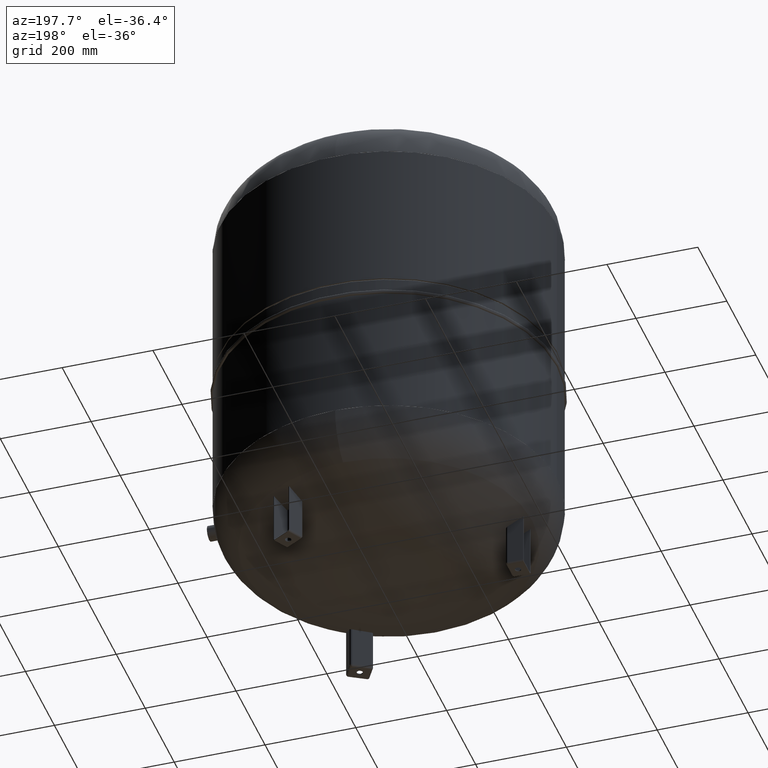
[diagram: clean part render]
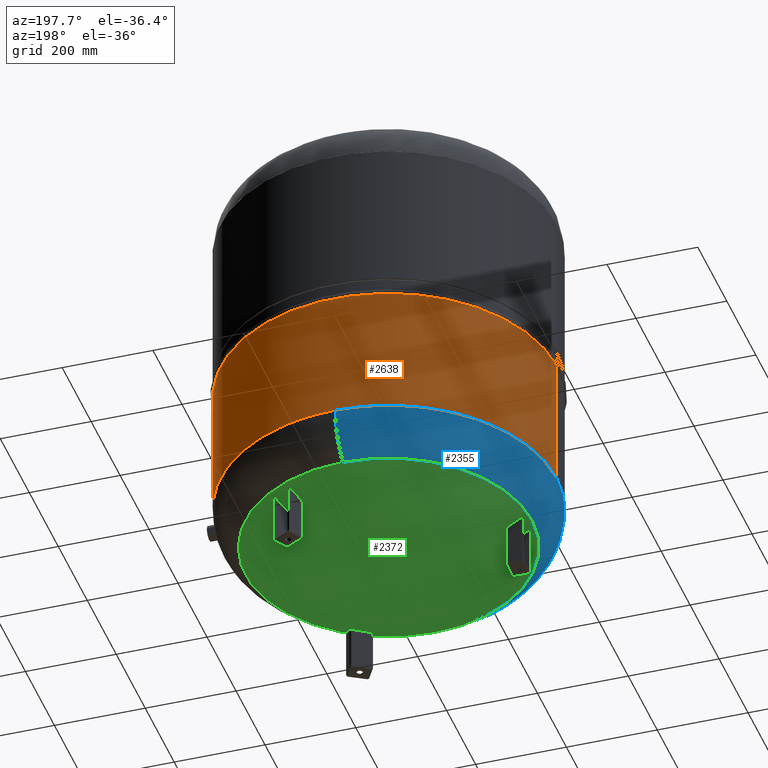
[diagram: same view with three faces highlighted in distinct colors, each labeled with its STEP entity id]
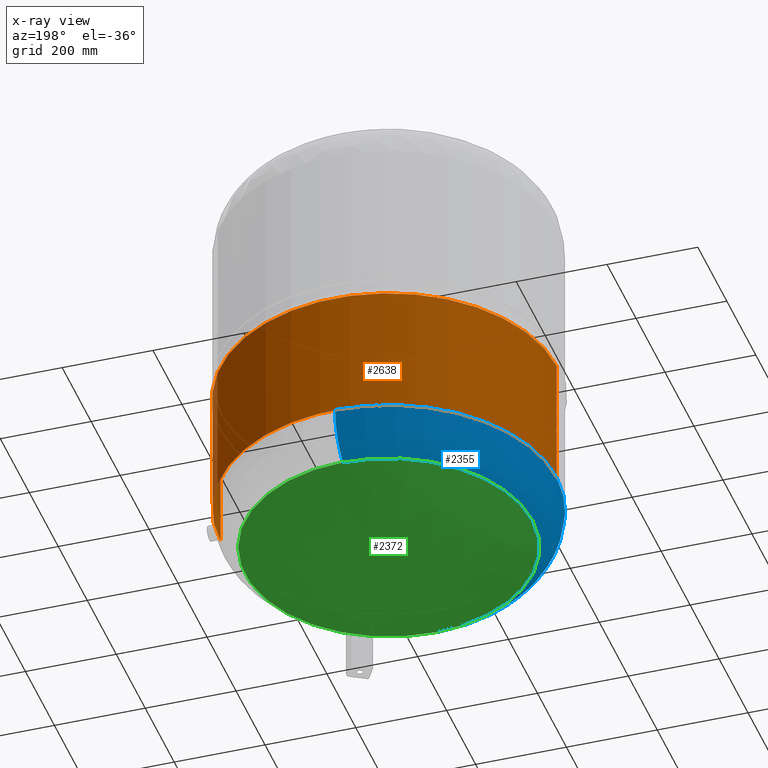
[diagram: x-ray of the same camera — body ghosted, the three highlighted faces saturated]
A machine part, auxiliary view with three faces highlighted in distinct colors.
The next image is the same camera in x-ray (body ghosted, the three faces saturated) — at least one of them is partly hidden behind the body in this view.
Their STEP definitions:

[orange] entity #2638 — the highlighted cylindrical surface (partial cylindrical patch) has radius 370 mm, axis along (0, 0, 1).
#2544=CARTESIAN_POINT('',(369.999999999999720,0.0,510.600000000000020));
#2545=VERTEX_POINT('',#2544);
#2554=CARTESIAN_POINT('',(-369.999999999999890,-4.531044E-014,510.600000000000020));
#2555=VERTEX_POINT('',#2554);
#2578=CARTESIAN_POINT('',(369.999999999999940,0.0,219.0));
#2579=VERTEX_POINT('',#2578);
#2580=CARTESIAN_POINT('',(369.999999999999720,0.0,510.600000000000020));
#2581=DIRECTION('',(0.0,0.0,-1.0));
#2582=VECTOR('',#2581,291.600000000000020);
#2583=LINE('',#2580,#2582);
#2584=EDGE_CURVE('',#2545,#2579,#2583,.T.);
#2587=CARTESIAN_POINT('',(-369.999999999999890,-4.531044E-014,219.000000000000030));
#2588=VERTEX_POINT('',#2587);
#2589=CARTESIAN_POINT('',(-369.999999999999890,-4.531044E-014,510.600000000000020));
#2590=DIRECTION('',(0.0,0.0,-1.0));
#2591=VECTOR('',#2590,291.600000000000020);
#2592=LINE('',#2589,#2591);
#2593=EDGE_CURVE('',#2555,#2588,#2592,.T.);
#2610=CARTESIAN_POINT('',(-1.668796E-014,0.0,219.0));
#2611=DIRECTION('',(0.0,0.0,1.0));
#2612=DIRECTION('',(1.0,0.0,0.0));
#2613=AXIS2_PLACEMENT_3D('',#2610,#2611,#2612);
#2614=CIRCLE('',#2613,369.999999999999940);
#2615=EDGE_CURVE('',#2579,#2588,#2614,.T.);
#2621=CARTESIAN_POINT('',(-9.337194E-015,0.0,364.799999999999950));
#2622=DIRECTION('',(5.041681E-017,0.0,1.0));
#2623=DIRECTION('',(1.0,0.0,0.0));
#2624=AXIS2_PLACEMENT_3D('',#2621,#2622,#2623);
#2625=CYLINDRICAL_SURFACE('',#2624,369.999999999999890);
#2626=ORIENTED_EDGE('',*,*,#2584,.T.);
#2627=ORIENTED_EDGE('',*,*,#2615,.T.);
#2628=ORIENTED_EDGE('',*,*,#2593,.F.);
#2629=CARTESIAN_POINT('',(-1.986422E-015,0.0,510.600000000000020));
#2630=DIRECTION('',(0.0,0.0,1.0));
#2631=DIRECTION('',(1.0,0.0,0.0));
#2632=AXIS2_PLACEMENT_3D('',#2629,#2630,#2631);
#2633=CIRCLE('',#2632,369.999999999999720);
#2634=EDGE_CURVE('',#2545,#2555,#2633,.T.);
#2635=ORIENTED_EDGE('',*,*,#2634,.F.);
#2636=EDGE_LOOP('',(#2626,#2627,#2628,#2635));
#2637=FACE_OUTER_BOUND('',#2636,.T.);
#2638=ADVANCED_FACE('',(#2637),#2625,.T.);

[blue] entity #2355 — the highlighted toroidal blend (fillet) surface has major radius 254.5 mm and minor (blend) radius 115.5 mm.
#2260=CARTESIAN_POINT('',(-370.0,-3.468087E-014,218.793879611869530));
#2261=VERTEX_POINT('',#2260);
#2285=CARTESIAN_POINT('',(-4.531044E-014,369.999999999999940,218.793879611869580));
#2286=VERTEX_POINT('',#2285);
#2294=CARTESIAN_POINT('',(0.0,-3.468087E-014,218.793879611869530));
#2295=DIRECTION('',(0.0,0.0,1.0));
#2296=DIRECTION('',(-1.0,0.0,0.0));
#2297=AXIS2_PLACEMENT_3D('',#2294,#2295,#2296);
#2298=CIRCLE('',#2297,370.0);
#2299=EDGE_CURVE('',#2286,#2261,#2298,.T.);
#2304=CARTESIAN_POINT('',(0.0,-3.468087E-014,218.793879611869560));
#2305=DIRECTION('',(0.0,-1.836970E-016,1.0));
#2306=DIRECTION('',(0.0,-1.0,0.0));
#2307=AXIS2_PLACEMENT_3D('',#2304,#2305,#2306);
#2308=TOROIDAL_SURFACE('',#2307,254.500000000000030,115.500000000000000);
#2309=CARTESIAN_POINT('',(0.0,-370.000000000000060,218.793879611869470));
#2310=VERTEX_POINT('',#2309);
#2311=CARTESIAN_POINT('',(0.0,-315.931034482758610,120.985505725079490));
#2312=VERTEX_POINT('',#2311);
#2313=CARTESIAN_POINT('',(0.0,-254.500000000000060,218.793879611869530));
#2314=DIRECTION('',(1.0,0.0,0.0));
#2315=DIRECTION('',(0.0,-1.0,0.0));
#2316=AXIS2_PLACEMENT_3D('',#2313,#2314,#2315);
#2317=CIRCLE('',#2316,115.500000000000000);
#2318=EDGE_CURVE('',#2310,#2312,#2317,.T.);
#2319=ORIENTED_EDGE('',*,*,#2318,.F.);
#2320=CARTESIAN_POINT('',(0.0,-3.468087E-014,218.793879611869530));
#2321=DIRECTION('',(0.0,0.0,1.0));
#2322=DIRECTION('',(-1.0,0.0,0.0));
#2323=AXIS2_PLACEMENT_3D('',#2320,#2321,#2322);
#2324=CIRCLE('',#2323,370.0);
#2325=EDGE_CURVE('',#2261,#2310,#2324,.T.);
#2326=ORIENTED_EDGE('',*,*,#2325,.F.);
#2327=ORIENTED_EDGE('',*,*,#2299,.F.);
#2328=CARTESIAN_POINT('',(-3.868912E-014,315.931034482758610,120.985505725079610));
#2329=VERTEX_POINT('',#2328);
#2330=CARTESIAN_POINT('',(-3.116623E-014,254.500000000000000,218.793879611869580));
#2331=DIRECTION('',(-1.0,0.0,0.0));
#2332=DIRECTION('',(0.0,1.0,0.0));
#2333=AXIS2_PLACEMENT_3D('',#2330,#2331,#2332);
#2334=CIRCLE('',#2333,115.500000000000000);
#2335=EDGE_CURVE('',#2286,#2329,#2334,.T.);
#2336=ORIENTED_EDGE('',*,*,#2335,.T.);
#2337=CARTESIAN_POINT('',(-315.931034482758610,-1.671377E-014,120.985505725079550));
#2338=VERTEX_POINT('',#2337);
#2339=CARTESIAN_POINT('',(0.0,-1.671377E-014,120.985505725079550));
#2340=DIRECTION('',(0.0,0.0,1.0));
#2341=DIRECTION('',(-1.0,0.0,0.0));
#2342=AXIS2_PLACEMENT_3D('',#2339,#2340,#2341);
#2343=CIRCLE('',#2342,315.931034482758610);
#2344=EDGE_CURVE('',#2329,#2338,#2343,.T.);
#2345=ORIENTED_EDGE('',*,*,#2344,.T.);
#2346=CARTESIAN_POINT('',(0.0,-1.671377E-014,120.985505725079550));
#2347=DIRECTION('',(0.0,0.0,1.0));
#2348=DIRECTION('',(-1.0,0.0,0.0));
#2349=AXIS2_PLACEMENT_3D('',#2346,#2347,#2348);
#2350=CIRCLE('',#2349,315.931034482758610);
#2351=EDGE_CURVE('',#2338,#2312,#2350,.T.);
#2352=ORIENTED_EDGE('',*,*,#2351,.T.);
#2353=EDGE_LOOP('',(#2319,#2326,#2327,#2336,#2345,#2352));
#2354=FACE_OUTER_BOUND('',#2353,.T.);
#2355=ADVANCED_FACE('',(#2354),#2308,.T.);

[green] entity #2372 — the highlighted spherical surface has radius 594 mm.
#2311=CARTESIAN_POINT('',(0.0,-315.931034482758610,120.985505725079490));
#2312=VERTEX_POINT('',#2311);
#2328=CARTESIAN_POINT('',(-3.868912E-014,315.931034482758610,120.985505725079610));
#2329=VERTEX_POINT('',#2328);
#2337=CARTESIAN_POINT('',(-315.931034482758610,-1.671377E-014,120.985505725079550));
#2338=VERTEX_POINT('',#2337);
#2339=CARTESIAN_POINT('',(0.0,-1.671377E-014,120.985505725079550));
#2340=DIRECTION('',(0.0,0.0,1.0));
#2341=DIRECTION('',(-1.0,0.0,0.0));
#2342=AXIS2_PLACEMENT_3D('',#2339,#2340,#2341);
#2343=CIRCLE('',#2342,315.931034482758610);
#2344=EDGE_CURVE('',#2329,#2338,#2343,.T.);
#2346=CARTESIAN_POINT('',(0.0,-1.671377E-014,120.985505725079550));
#2347=DIRECTION('',(0.0,0.0,1.0));
#2348=DIRECTION('',(-1.0,0.0,0.0));
#2349=AXIS2_PLACEMENT_3D('',#2346,#2347,#2348);
#2350=CIRCLE('',#2349,315.931034482758610);
#2351=EDGE_CURVE('',#2338,#2312,#2350,.T.);
#2356=CARTESIAN_POINT('',(0.0,-1.091160E-013,624.0));
#2357=DIRECTION('',(0.0,-1.0,0.0));
#2358=DIRECTION('',(1.0,0.0,0.0));
#2359=AXIS2_PLACEMENT_3D('',#2356,#2357,#2358);
#2360=SPHERICAL_SURFACE('',#2359,594.0);
#2361=ORIENTED_EDGE('',*,*,#2351,.F.);
#2362=ORIENTED_EDGE('',*,*,#2344,.F.);
#2363=CARTESIAN_POINT('',(0.0,-1.671377E-014,120.985505725079550));
#2364=DIRECTION('',(0.0,0.0,1.0));
#2365=DIRECTION('',(-1.0,0.0,0.0));
#2366=AXIS2_PLACEMENT_3D('',#2363,#2364,#2365);
#2367=CIRCLE('',#2366,315.931034482758610);
#2368=EDGE_CURVE('',#2312,#2329,#2367,.T.);
#2369=ORIENTED_EDGE('',*,*,#2368,.F.);
#2370=EDGE_LOOP('',(#2361,#2362,#2369));
#2371=FACE_OUTER_BOUND('',#2370,.T.);
#2372=ADVANCED_FACE('',(#2371),#2360,.T.);